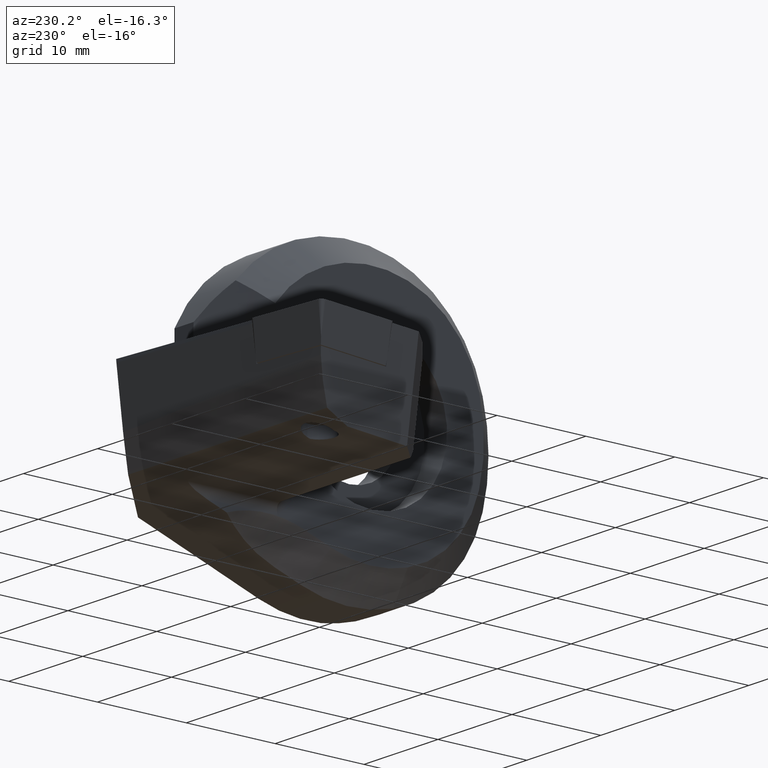
[diagram: clean part render]
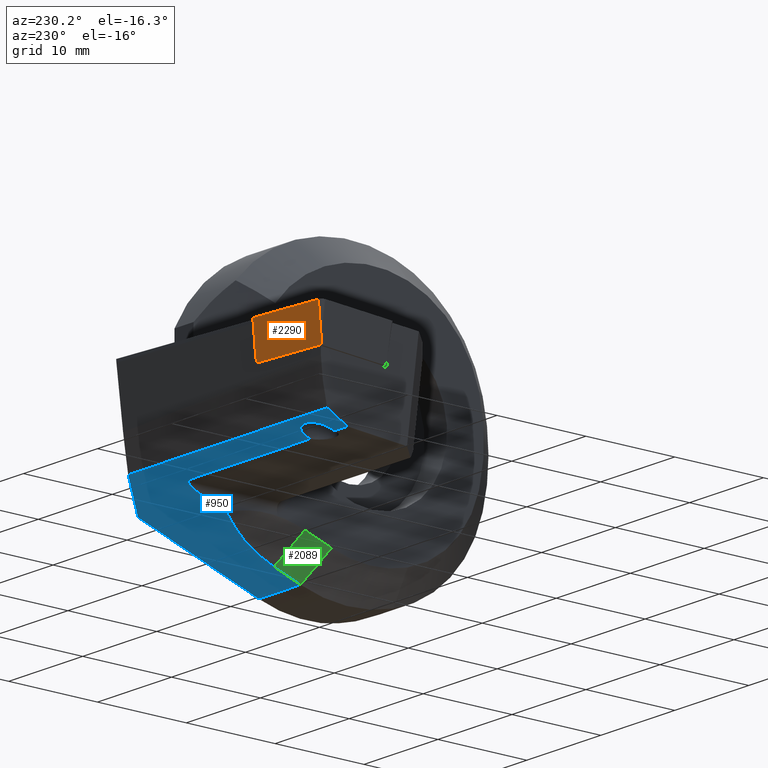
[diagram: same view with three faces highlighted in distinct colors, each labeled with its STEP entity id]
A machine part, auxiliary view with three faces highlighted in distinct colors.
Their STEP definitions:

[orange] entity #2290 — the highlighted planar face has unit normal (0.0043, 0.9925, -0.1218).
#23 = VERTEX_POINT ( 'NONE', #3570 ) ;
#248 = CARTESIAN_POINT ( 'NONE',  ( 3.901050553895645900, -0.9236420824419930800, -4.649091012496943300 ) ) ;
#547 = EDGE_CURVE ( 'NONE', #2306, #3407, #2865, .T. ) ;
#682 = DIRECTION ( 'NONE',  ( -1.000000000000000000, -1.054711873393889600E-015, -1.165734175856408100E-015 ) ) ;
#759 = LINE ( 'NONE', #2102, #1436 ) ;
#773 = DIRECTION ( 'NONE',  ( 1.332267629550187500E-015, 0.9925461516413219800, -0.1218693434051483100 ) ) ;
#843 = VECTOR ( 'NONE', #1396, 1000.000000000000000 ) ;
#943 = DIRECTION ( 'NONE',  ( 1.332267629550187500E-015, 0.9925461516413219800, -0.1218693434051483100 ) ) ;
#962 = VERTEX_POINT ( 'NONE', #1467 ) ;
#971 = PLANE ( 'NONE',  #4062 ) ;
#1015 = EDGE_CURVE ( 'NONE', #4385, #2813, #2343, .T. ) ;
#1148 = CARTESIAN_POINT ( 'NONE',  ( 3.660572141010854700, -1.705267871354720900E-010, -4.762500000000054400 ) ) ;
#1244 = ORIENTED_EDGE ( 'NONE', *, *, #4250, .T. ) ;
#1334 = DIRECTION ( 'NONE',  ( 0.1017299982538295400, 0.9873968681573442900, -0.1212370908936033100 ) ) ;
#1396 = DIRECTION ( 'NONE',  ( -1.000000000000000000, -1.054711873393889600E-015, -1.165734175856408100E-015 ) ) ;
#1436 = VECTOR ( 'NONE', #682, 1000.000000000000000 ) ;
#1467 = CARTESIAN_POINT ( 'NONE',  ( -5.199025047692316500, -3.257738571360361500, -4.362500000000066400 ) ) ;
#1655 = VECTOR ( 'NONE', #1334, 1000.000000000000100 ) ;
#1679 = CARTESIAN_POINT ( 'NONE',  ( 3.660572141010854700, -1.705267871354720900E-010, -4.762500000000054400 ) ) ;
#1849 = CARTESIAN_POINT ( 'NONE',  ( 3.660572141010830700, -3.257738571360371700, -4.362500000000079800 ) ) ;
#1863 = DIRECTION ( 'NONE',  ( -0.1437302061857491400, 0.9822404552545257500, -0.1206039629994968100 ) ) ;
#1984 = LINE ( 'NONE', #3823, #3644 ) ;
#2083 = ORIENTED_EDGE ( 'NONE', *, *, #1015, .F. ) ;
#2102 = CARTESIAN_POINT ( 'NONE',  ( 3.660572141010854700, -1.705267871354720900E-010, -4.762500000000054400 ) ) ;
#2119 = CARTESIAN_POINT ( 'NONE',  ( -5.094800586692557000, -3.970000000170534900, -4.275045293215552700 ) ) ;
#2290 = ADVANCED_FACE ( 'NONE', ( #3800 ), #971, .T. ) ;
#2306 = VERTEX_POINT ( 'NONE', #3628 ) ;
#2343 = LINE ( 'NONE', #1148, #3216 ) ;
#2549 = LINE ( 'NONE', #4360, #4433 ) ;
#2615 = LINE ( 'NONE', #248, #1655 ) ;
#2736 = EDGE_CURVE ( 'NONE', #962, #23, #1984, .T. ) ;
#2797 = ORIENTED_EDGE ( 'NONE', *, *, #3703, .F. ) ;
#2813 = VERTEX_POINT ( 'NONE', #3190 ) ;
#2865 = LINE ( 'NONE', #3550, #843 ) ;
#3190 = CARTESIAN_POINT ( 'NONE',  ( 3.660572141010837400, 3.469446951953614200E-015, -4.762500000000047300 ) ) ;
#3216 = VECTOR ( 'NONE', #773, 999.9999999999998900 ) ;
#3273 = ORIENTED_EDGE ( 'NONE', *, *, #2736, .T. ) ;
#3407 = VERTEX_POINT ( 'NONE', #2119 ) ;
#3550 = CARTESIAN_POINT ( 'NONE',  ( 3.660572141010858300, -3.970000000170524700, -4.275045293215519800 ) ) ;
#3570 = CARTESIAN_POINT ( 'NONE',  ( -5.199025047692347600, -2.081668171172168500E-014, -4.762500000000073000 ) ) ;
#3628 = CARTESIAN_POINT ( 'NONE',  ( 3.587188928803214600, -3.970000000170531800, -4.275045293215559800 ) ) ;
#3644 = VECTOR ( 'NONE', #943, 999.9999999999998900 ) ;
#3703 = EDGE_CURVE ( 'NONE', #2306, #4385, #2615, .T. ) ;
#3800 = FACE_OUTER_BOUND ( 'NONE', #4327, .T. ) ;
#3823 = CARTESIAN_POINT ( 'NONE',  ( -5.199025047692327200, -1.705510732641357700E-010, -4.762500000000053500 ) ) ;
#3832 = ORIENTED_EDGE ( 'NONE', *, *, #4619, .F. ) ;
#4062 = AXIS2_PLACEMENT_3D ( 'NONE', #1679, #4180, #4536 ) ;
#4077 = ORIENTED_EDGE ( 'NONE', *, *, #547, .T. ) ;
#4180 = DIRECTION ( 'NONE',  ( -1.276756478318928800E-015, -0.1218693434051483100, -0.9925461516413219800 ) ) ;
#4250 = EDGE_CURVE ( 'NONE', #3407, #962, #2549, .T. ) ;
#4327 = EDGE_LOOP ( 'NONE', ( #3832, #2083, #2797, #4077, #1244, #3273 ) ) ;
#4360 = CARTESIAN_POINT ( 'NONE',  ( -5.482853753027318300, -1.318076449243286400, -4.600660561964196500 ) ) ;
#4385 = VERTEX_POINT ( 'NONE', #1849 ) ;
#4433 = VECTOR ( 'NONE', #1863, 1000.000000000000100 ) ;
#4536 = DIRECTION ( 'NONE',  ( 1.332267629550187300E-015, 0.9925461516413218700, -0.1218693434051482900 ) ) ;
#4619 = EDGE_CURVE ( 'NONE', #2813, #23, #759, .T. ) ;

[blue] entity #950 — the highlighted planar face has unit normal (0, -0.333, 0.9429).
#11 = DIRECTION ( 'NONE',  ( 0.6638882654259754500, -0.7051636885967134100, -0.2489910506712375800 ) ) ;
#156 =( BOUNDED_CURVE ( )  B_SPLINE_CURVE ( 3, ( #921, #3450, #605, #4118, #3135, #956, #1277 ),
 .UNSPECIFIED., .F., .F. ) 
 B_SPLINE_CURVE_WITH_KNOTS ( ( 4, 3, 4 ),
 ( 4.439045392670219100, 6.184666961994414800, 7.930288531318611300 ),
 .UNSPECIFIED. ) 
 CURVE ( )  GEOMETRIC_REPRESENTATION_ITEM ( )  RATIONAL_B_SPLINE_CURVE ( ( 1.000000000000000000, 0.7617837591920825200, 0.7617837591920825200, 1.000000000000000000, 0.7617837591920821900, 0.7617837591920821900, 1.000000000000000000 ) ) 
 REPRESENTATION_ITEM ( '' )  );
#167 = DIRECTION ( 'NONE',  ( -0.2146926687382906800, 0.9209563673773778500, 0.3251867576902460200 ) ) ;
#185 = CARTESIAN_POINT ( 'NONE',  ( -30.09174589754599800, 24.21831123541422300, -9.000000000000000000 ) ) ;
#216 = VERTEX_POINT ( 'NONE', #185 ) ;
#244 = LINE ( 'NONE', #3481, #2287 ) ;
#293 = DIRECTION ( 'NONE',  ( 1.000000000000000000, -0.0000000000000000000, -0.0000000000000000000 ) ) ;
#313 = ORIENTED_EDGE ( 'NONE', *, *, #461, .T. ) ;
#317 =( BOUNDED_CURVE ( )  B_SPLINE_CURVE ( 3, ( #3983, #459, #775, #3650 ),
 .UNSPECIFIED., .F., .F. ) 
 B_SPLINE_CURVE_WITH_KNOTS ( ( 4, 4 ),
 ( 4.712388980384689700, 6.283185307179586200 ),
 .UNSPECIFIED. ) 
 CURVE ( )  GEOMETRIC_REPRESENTATION_ITEM ( )  RATIONAL_B_SPLINE_CURVE ( ( 1.000000000000000000, 0.8047378541243649400, 0.8047378541243649400, 1.000000000000000000 ) ) 
 REPRESENTATION_ITEM ( '' )  );
#368 = CARTESIAN_POINT ( 'NONE',  ( -15.89828489888472500, 37.69704941109944200, -4.240700514847774500 ) ) ;
#376 = CARTESIAN_POINT ( 'NONE',  ( -3.208499176375470000, 24.21831123541422300, -9.000000000000001800 ) ) ;
#386 = VECTOR ( 'NONE', #2818, 1000.000000000000100 ) ;
#458 = VECTOR ( 'NONE', #3843, 1000.000000000000100 ) ;
#459 = CARTESIAN_POINT ( 'NONE',  ( -7.049999999999990900, 20.21313896348681600, -10.41421356237309800 ) ) ;
#460 = VERTEX_POINT ( 'NONE', #3504 ) ;
#461 = EDGE_CURVE ( 'NONE', #460, #2990, #1902, .T. ) ;
#479 = EDGE_CURVE ( 'NONE', #216, #1742, #954, .T. ) ;
#605 = CARTESIAN_POINT ( 'NONE',  ( -24.93862488657186900, 23.32322123903134100, -9.316053424543454800 ) ) ;
#658 = DIRECTION ( 'NONE',  ( 0.0000000000000000000, -0.9429442657414161000, -0.3329506145141973800 ) ) ;
#671 = EDGE_CURVE ( 'NONE', #1755, #216, #4027, .T. ) ;
#696 = B_SPLINE_CURVE_WITH_KNOTS ( 'NONE', 3,
 ( #3163, #3881, #1704, #1061, #4598, #2465, #1079, #2897, #730, #1412, #2498, #3276 ),
 .UNSPECIFIED., .F., .F.,
 ( 4, 2, 2, 2, 2, 4 ),
 ( 0.001056191372176548200, 0.002174139056895460400, 0.003292086741614372800, 0.005527982111052198500, 0.007763877480490024300, 0.009999772849927850800 ),
 .UNSPECIFIED. ) ;
#724 = EDGE_CURVE ( 'NONE', #2941, #1755, #244, .T. ) ;
#730 = CARTESIAN_POINT ( 'NONE',  ( -5.554751086902387900, 13.88950949437960800, -12.64706697078092100 ) ) ;
#775 = CARTESIAN_POINT ( 'NONE',  ( -7.464213562373086800, 21.38622676211401700, -10.00000000000000200 ) ) ;
#921 = CARTESIAN_POINT ( 'NONE',  ( -24.39586387962072700, 21.38622676211403100, -9.999999999999998200 ) ) ;
#950 = ADVANCED_FACE ( 'NONE', ( #3038 ), #2719, .F. ) ;
#954 = LINE ( 'NONE', #3565, #3340 ) ;
#956 = CARTESIAN_POINT ( 'NONE',  ( -27.85351635784386200, 22.47565154770072800, -9.615327580848175500 ) ) ;
#984 = ORIENTED_EDGE ( 'NONE', *, *, #479, .T. ) ;
#989 = VERTEX_POINT ( 'NONE', #2918 ) ;
#1017 = DIRECTION ( 'NONE',  ( 0.0000000000000000000, -0.3329506145141973800, 0.9429442657414161000 ) ) ;
#1061 = CARTESIAN_POINT ( 'NONE',  ( -4.153302093896080300, 9.902686689024637400, -14.05480139499785800 ) ) ;
#1079 = CARTESIAN_POINT ( 'NONE',  ( -4.681899132607525400, 11.95644303087331800, -13.32962657722292100 ) ) ;
#1108 = LINE ( 'NONE', #2673, #4556 ) ;
#1210 = EDGE_CURVE ( 'NONE', #2943, #2990, #2052, .T. ) ;
#1220 = ORIENTED_EDGE ( 'NONE', *, *, #1210, .F. ) ;
#1224 = ORIENTED_EDGE ( 'NONE', *, *, #3396, .T. ) ;
#1232 = VECTOR ( 'NONE', #2764, 1000.000000000000000 ) ;
#1277 = CARTESIAN_POINT ( 'NONE',  ( -27.64754265133775100, 21.38622676211402800, -10.00000000000000000 ) ) ;
#1412 = CARTESIAN_POINT ( 'NONE',  ( -6.263470868470177400, 15.13271752466091700, -12.20809417812526100 ) ) ;
#1454 = LINE ( 'NONE', #368, #2790 ) ;
#1516 = CARTESIAN_POINT ( 'NONE',  ( 1.600000000000000100, 5.510332670209964900, -15.60572759802044400 ) ) ;
#1590 = CARTESIAN_POINT ( 'NONE',  ( -24.39586387962072700, 21.38622676211403100, -9.999999999999998200 ) ) ;
#1610 = VECTOR ( 'NONE', #3592, 1000.000000000000000 ) ;
#1663 = VECTOR ( 'NONE', #167, 1000.000000000000100 ) ;
#1704 = CARTESIAN_POINT ( 'NONE',  ( -4.070929115531526100, 9.202568481099497400, -14.30201090252688300 ) ) ;
#1742 = VERTEX_POINT ( 'NONE', #376 ) ;
#1755 = VERTEX_POINT ( 'NONE', #3924 ) ;
#1780 = CARTESIAN_POINT ( 'NONE',  ( -7.049999999999997200, 24.21831123541422700, -8.999999999999998200 ) ) ;
#1902 = LINE ( 'NONE', #3459, #458 ) ;
#1908 = EDGE_LOOP ( 'NONE', ( #2584, #3980, #984, #2047, #313, #1220, #4568, #4373, #1224, #2693, #3626, #3678 ) ) ;
#1948 = VERTEX_POINT ( 'NONE', #4014 ) ;
#1952 = EDGE_CURVE ( 'NONE', #989, #4038, #317, .T. ) ;
#1991 = DIRECTION ( 'NONE',  ( -1.000000000000000000, 6.141104277229068000E-016, 2.168404344971008600E-016 ) ) ;
#2037 = LINE ( 'NONE', #1780, #386 ) ;
#2047 = ORIENTED_EDGE ( 'NONE', *, *, #2376, .T. ) ;
#2052 = LINE ( 'NONE', #4494, #1232 ) ;
#2201 = CARTESIAN_POINT ( 'NONE',  ( -4.049999999999989200, 5.510332670209974600, -15.60572759802044400 ) ) ;
#2287 = VECTOR ( 'NONE', #1991, 1000.000000000000000 ) ;
#2376 = EDGE_CURVE ( 'NONE', #1742, #460, #1454, .T. ) ;
#2465 = CARTESIAN_POINT ( 'NONE',  ( -4.453976081130090100, 11.28991664632316400, -13.56497491899518000 ) ) ;
#2498 = CARTESIAN_POINT ( 'NONE',  ( -6.647070819195808300, 15.73807150069113100, -11.99434561880888800 ) ) ;
#2557 = CARTESIAN_POINT ( 'NONE',  ( -32.00000000000000000, 21.38622676211403100, -9.999999999999998200 ) ) ;
#2568 = LINE ( 'NONE', #2557, #1610 ) ;
#2584 = ORIENTED_EDGE ( 'NONE', *, *, #724, .T. ) ;
#2673 = CARTESIAN_POINT ( 'NONE',  ( -4.049999999999983800, 24.21831123541420900, -9.000000000000005300 ) ) ;
#2693 = ORIENTED_EDGE ( 'NONE', *, *, #1952, .T. ) ;
#2700 = VERTEX_POINT ( 'NONE', #3484 ) ;
#2719 = PLANE ( 'NONE',  #4370 ) ;
#2764 = DIRECTION ( 'NONE',  ( 1.000000000000000000, -0.0000000000000000000, -0.0000000000000000000 ) ) ;
#2790 = VECTOR ( 'NONE', #11, 1000.000000000000100 ) ;
#2818 = DIRECTION ( 'NONE',  ( -1.115282423399552900E-016, 0.9429442657414161000, 0.3329506145141973800 ) ) ;
#2861 = EDGE_CURVE ( 'NONE', #4038, #3950, #2568, .T. ) ;
#2897 = CARTESIAN_POINT ( 'NONE',  ( -5.232212672547858800, 13.25613457700847600, -12.87070963516552700 ) ) ;
#2918 = CARTESIAN_POINT ( 'NONE',  ( -7.049999999999991800, 18.55414228881382900, -11.00000000000000200 ) ) ;
#2941 = VERTEX_POINT ( 'NONE', #3972 ) ;
#2943 = VERTEX_POINT ( 'NONE', #2201 ) ;
#2990 = VERTEX_POINT ( 'NONE', #1516 ) ;
#3038 = FACE_OUTER_BOUND ( 'NONE', #1908, .T. ) ;
#3135 = CARTESIAN_POINT ( 'NONE',  ( -27.15254952579899200, 23.32322123903134400, -9.316053424543454800 ) ) ;
#3163 = CARTESIAN_POINT ( 'NONE',  ( -4.049999999999996300, 8.499999999999998200, -14.55008559370330800 ) ) ;
#3276 = CARTESIAN_POINT ( 'NONE',  ( -7.049999999999995400, 16.33268333920939600, -11.78439007400644000 ) ) ;
#3340 = VECTOR ( 'NONE', #293, 1000.000000000000000 ) ;
#3396 = EDGE_CURVE ( 'NONE', #1948, #989, #2037, .T. ) ;
#3450 = CARTESIAN_POINT ( 'NONE',  ( -24.21675628687269100, 22.47565154770073500, -9.615327580848173700 ) ) ;
#3459 = CARTESIAN_POINT ( 'NONE',  ( 1.600000000000000100, 24.21831123541422300, -9.000000000000000000 ) ) ;
#3481 = CARTESIAN_POINT ( 'NONE',  ( -32.00000000000000000, 21.38622676211403100, -9.999999999999998200 ) ) ;
#3484 = CARTESIAN_POINT ( 'NONE',  ( -4.049999999999996300, 8.499999999999998200, -14.55008559370330800 ) ) ;
#3498 = EDGE_CURVE ( 'NONE', #2943, #2700, #1108, .T. ) ;
#3504 = CARTESIAN_POINT ( 'NONE',  ( 1.600000000000001000, 19.11085687537739400, -10.80342585406189200 ) ) ;
#3565 = CARTESIAN_POINT ( 'NONE',  ( -32.00000000000000000, 24.21831123541422300, -9.000000000000000000 ) ) ;
#3592 = DIRECTION ( 'NONE',  ( -1.000000000000000000, 6.141104277229068000E-016, 2.168404344971008600E-016 ) ) ;
#3626 = ORIENTED_EDGE ( 'NONE', *, *, #2861, .T. ) ;
#3650 = CARTESIAN_POINT ( 'NONE',  ( -8.049999999999991800, 21.38622676211402800, -10.00000000000000400 ) ) ;
#3678 = ORIENTED_EDGE ( 'NONE', *, *, #4483, .T. ) ;
#3843 = DIRECTION ( 'NONE',  ( 0.0000000000000000000, -0.9429442657414161000, -0.3329506145141973800 ) ) ;
#3881 = CARTESIAN_POINT ( 'NONE',  ( -4.049999999999990900, 8.851701548707026700, -14.42590089793496100 ) ) ;
#3924 = CARTESIAN_POINT ( 'NONE',  ( -29.43153245508228700, 21.38622676211403100, -9.999999999999998200 ) ) ;
#3950 = VERTEX_POINT ( 'NONE', #1590 ) ;
#3972 = CARTESIAN_POINT ( 'NONE',  ( -27.64754265133775100, 21.38622676211402800, -10.00000000000000000 ) ) ;
#3980 = ORIENTED_EDGE ( 'NONE', *, *, #671, .T. ) ;
#3983 = CARTESIAN_POINT ( 'NONE',  ( -7.049999999999991800, 18.55414228881382900, -11.00000000000000200 ) ) ;
#4014 = CARTESIAN_POINT ( 'NONE',  ( -7.049999999999995400, 16.33268333920939600, -11.78439007400644000 ) ) ;
#4027 = LINE ( 'NONE', #4362, #1663 ) ;
#4038 = VERTEX_POINT ( 'NONE', #4144 ) ;
#4114 = DIRECTION ( 'NONE',  ( 5.772879361549510700E-016, 0.9429442657414161000, 0.3329506145141973800 ) ) ;
#4118 = CARTESIAN_POINT ( 'NONE',  ( -26.04558720618543100, 23.32322123903134100, -9.316053424543454800 ) ) ;
#4144 = CARTESIAN_POINT ( 'NONE',  ( -8.049999999999991800, 21.38622676211402800, -10.00000000000000400 ) ) ;
#4165 = EDGE_CURVE ( 'NONE', #2700, #1948, #696, .T. ) ;
#4362 = CARTESIAN_POINT ( 'NONE',  ( -30.17970294323069800, 24.59561616042668300, -8.866774833671259500 ) ) ;
#4370 = AXIS2_PLACEMENT_3D ( 'NONE', #4396, #1017, #658 ) ;
#4373 = ORIENTED_EDGE ( 'NONE', *, *, #4165, .T. ) ;
#4396 = CARTESIAN_POINT ( 'NONE',  ( -32.00000000000000000, 24.21831123541422300, -9.000000000000000000 ) ) ;
#4483 = EDGE_CURVE ( 'NONE', #3950, #2941, #156, .T. ) ;
#4494 = CARTESIAN_POINT ( 'NONE',  ( -32.00000000000000000, 5.510332670209964900, -15.60572759802044400 ) ) ;
#4556 = VECTOR ( 'NONE', #4114, 1000.000000000000000 ) ;
#4568 = ORIENTED_EDGE ( 'NONE', *, *, #3498, .T. ) ;
#4598 = CARTESIAN_POINT ( 'NONE',  ( -4.215192158319846200, 10.25371702145123200, -13.93085370355857200 ) ) ;

[green] entity #2089 — the highlighted planar face has unit normal (0.7071, -0.2354, 0.6668).
#341 = FACE_OUTER_BOUND ( 'NONE', #3252, .T. ) ;
#473 = DIRECTION ( 'NONE',  ( 0.6860464241351398300, 0.0000000000000000000, -0.7275577667315411600 ) ) ;
#528 = LINE ( 'NONE', #2743, #3731 ) ;
#587 = DIRECTION ( 'NONE',  ( 0.0000000000000000000, -0.9429442657414158800, -0.3329506145141978300 ) ) ;
#1108 = LINE ( 'NONE', #2673, #4556 ) ;
#1538 = CARTESIAN_POINT ( 'NONE',  ( -7.049999999999995400, 4.511480826667383100, -12.77689480079620000 ) ) ;
#1614 = VECTOR ( 'NONE', #1889, 1000.000000000000100 ) ;
#1779 = LINE ( 'NONE', #3613, #2678 ) ;
#1889 = DIRECTION ( 'NONE',  ( -0.7071067811865486800, -0.2354316373232170100, 0.6667622845867239300 ) ) ;
#2069 = EDGE_CURVE ( 'NONE', #2943, #2723, #4570, .T. ) ;
#2089 = ADVANCED_FACE ( 'NONE', ( #341 ), #3388, .F. ) ;
#2104 = ORIENTED_EDGE ( 'NONE', *, *, #4518, .F. ) ;
#2201 = CARTESIAN_POINT ( 'NONE',  ( -4.049999999999989200, 5.510332670209974600, -15.60572759802044400 ) ) ;
#2304 = EDGE_CURVE ( 'NONE', #2700, #4277, #1779, .T. ) ;
#2412 = ORIENTED_EDGE ( 'NONE', *, *, #2069, .T. ) ;
#2515 = DIRECTION ( 'NONE',  ( -0.7071067811865486800, -0.2354316373232170100, 0.6667622845867239300 ) ) ;
#2593 = CARTESIAN_POINT ( 'NONE',  ( -7.049999999999992700, 7.501148156457407600, -11.72125279647906900 ) ) ;
#2617 = DIRECTION ( 'NONE',  ( 0.7071067811865462400, -0.2354316373232178700, 0.6667622845867262600 ) ) ;
#2673 = CARTESIAN_POINT ( 'NONE',  ( -4.049999999999983800, 24.21831123541420900, -9.000000000000005300 ) ) ;
#2678 = VECTOR ( 'NONE', #2515, 1000.000000000000100 ) ;
#2700 = VERTEX_POINT ( 'NONE', #3484 ) ;
#2723 = VERTEX_POINT ( 'NONE', #2732 ) ;
#2732 = CARTESIAN_POINT ( 'NONE',  ( -7.049999999999995400, 4.511480826667383100, -12.77689480079620000 ) ) ;
#2743 = CARTESIAN_POINT ( 'NONE',  ( -7.049999999999995400, 7.501148156457408500, -11.72125279647907100 ) ) ;
#2943 = VERTEX_POINT ( 'NONE', #2201 ) ;
#2999 = CARTESIAN_POINT ( 'NONE',  ( -7.049999999999995400, 7.501148156457408500, -11.72125279647907100 ) ) ;
#3252 = EDGE_LOOP ( 'NONE', ( #2412, #2104, #3524, #3572 ) ) ;
#3388 = PLANE ( 'NONE',  #3836 ) ;
#3484 = CARTESIAN_POINT ( 'NONE',  ( -4.049999999999996300, 8.499999999999998200, -14.55008559370330800 ) ) ;
#3498 = EDGE_CURVE ( 'NONE', #2943, #2700, #1108, .T. ) ;
#3524 = ORIENTED_EDGE ( 'NONE', *, *, #2304, .F. ) ;
#3572 = ORIENTED_EDGE ( 'NONE', *, *, #3498, .F. ) ;
#3613 = CARTESIAN_POINT ( 'NONE',  ( -7.049999999999995400, 7.501148156457408500, -11.72125279647907100 ) ) ;
#3731 = VECTOR ( 'NONE', #587, 1000.000000000000200 ) ;
#3836 = AXIS2_PLACEMENT_3D ( 'NONE', #2999, #2617, #473 ) ;
#4114 = DIRECTION ( 'NONE',  ( 5.772879361549510700E-016, 0.9429442657414161000, 0.3329506145141973800 ) ) ;
#4277 = VERTEX_POINT ( 'NONE', #2593 ) ;
#4518 = EDGE_CURVE ( 'NONE', #4277, #2723, #528, .T. ) ;
#4556 = VECTOR ( 'NONE', #4114, 1000.000000000000000 ) ;
#4570 = LINE ( 'NONE', #1538, #1614 ) ;